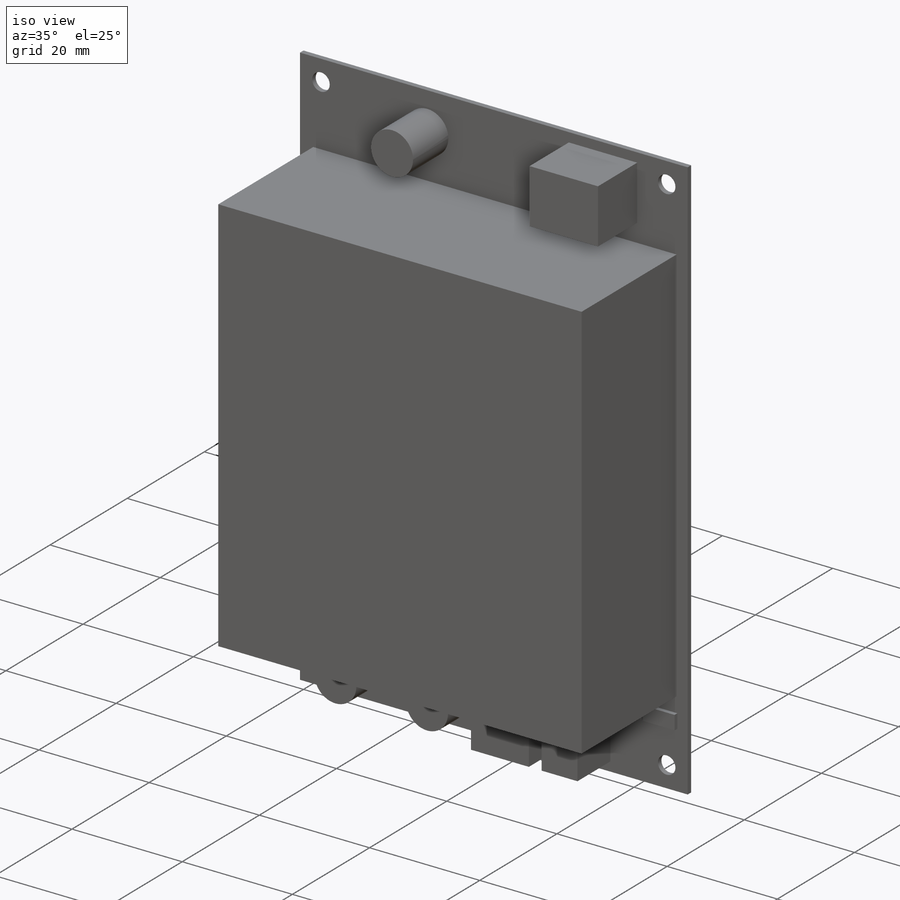
[diagram: iso view]
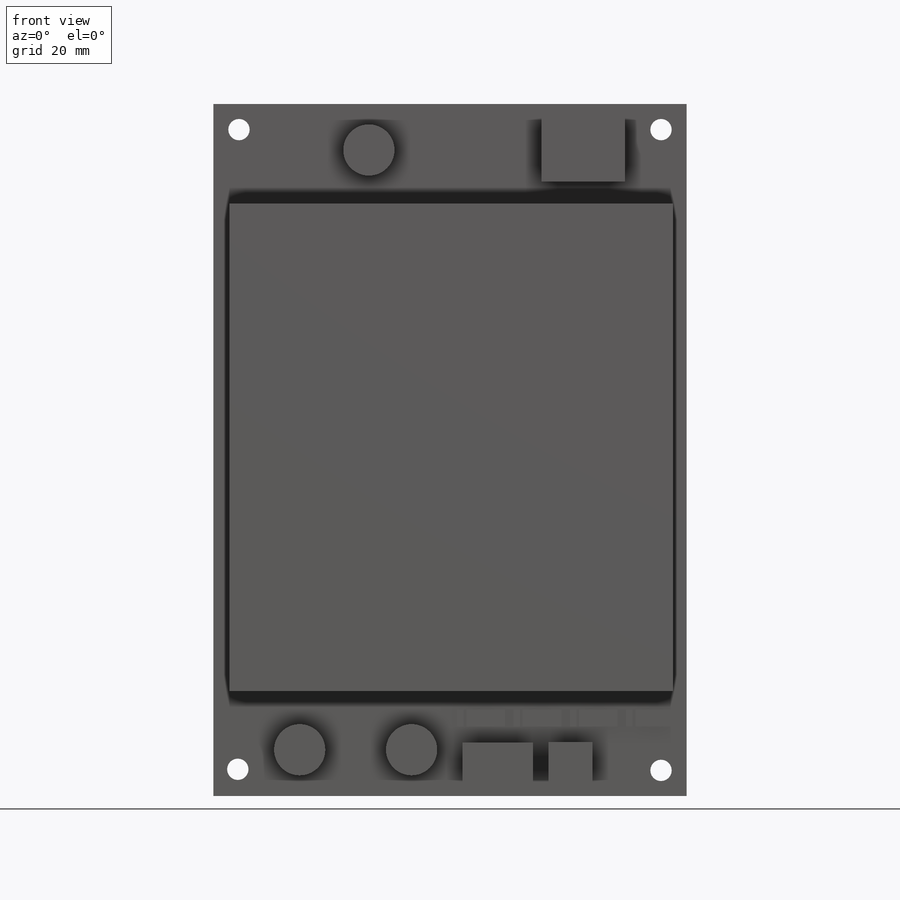
[diagram: front view]
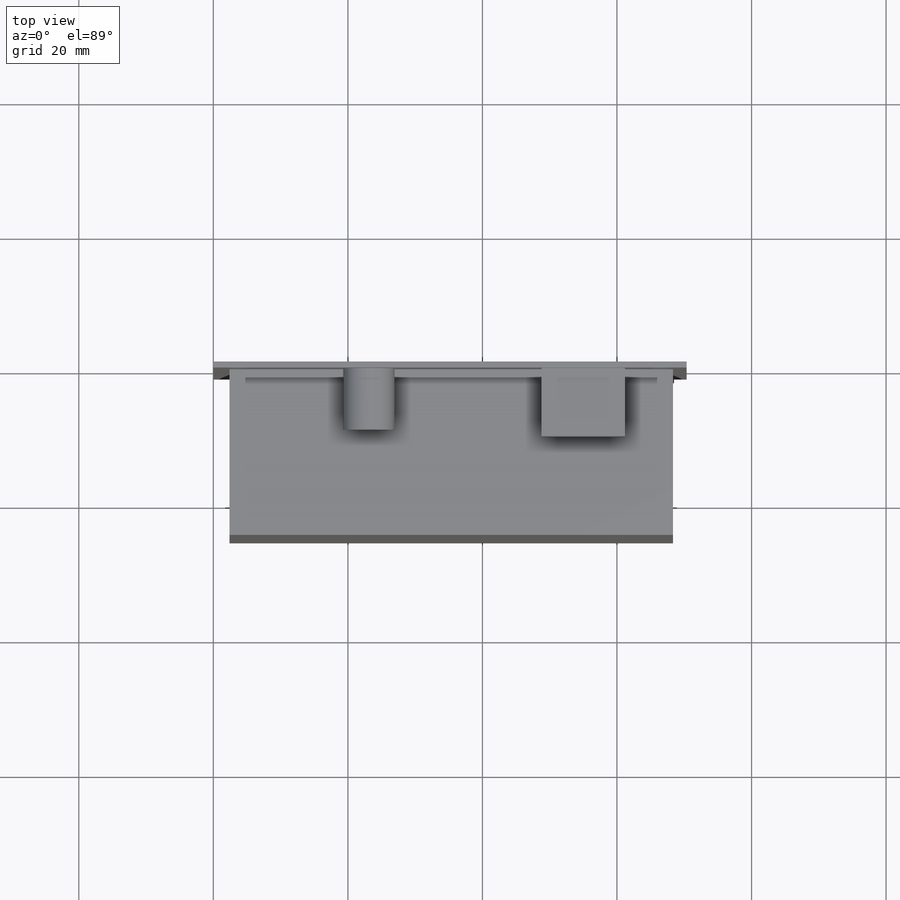
[diagram: top view]
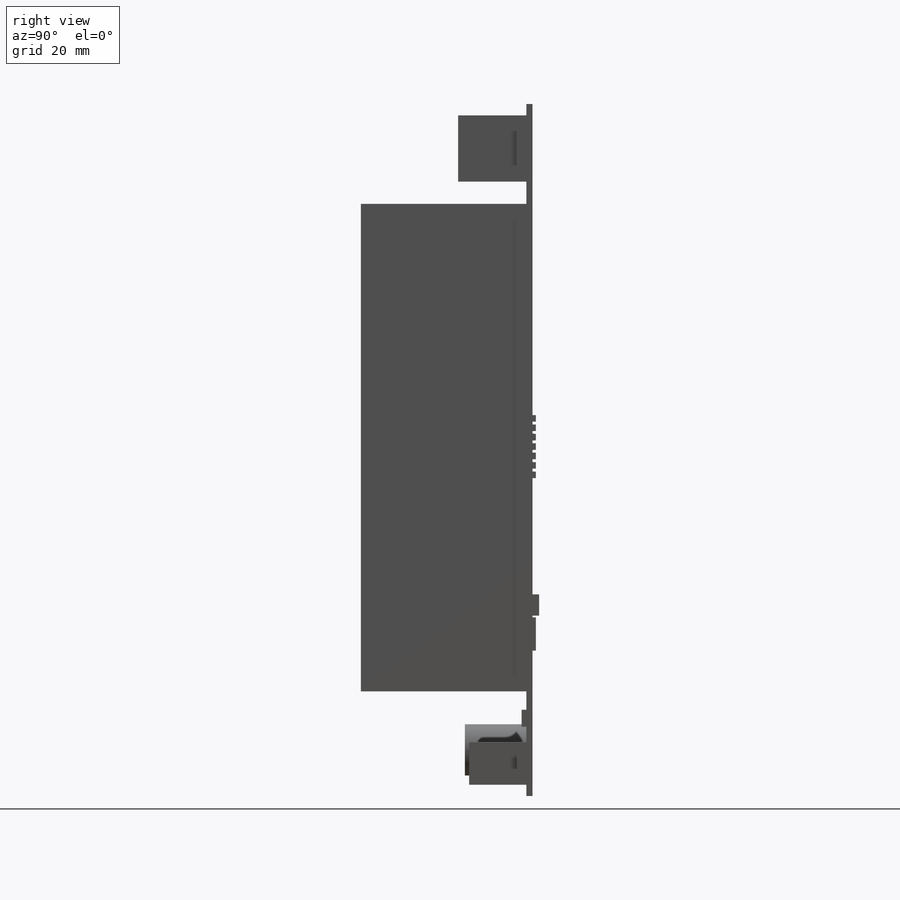
[diagram: right view]
SOLIDWORKS PART (.sldprt)
format: sldprt  version: not decoded by parser v0  size: 527,872 bytes
history: native  units: mm
features: sketch x37, extrude x35, fillet x12, material x1, plane x1, hole x1 (+16 scaffold rows collapsed)
feature tree (103):
  scaffold x16  (default folders/planes/origin — collapsed)
  material  "Material <not specified>"
  sketch  "Sketch1"
  extrude  "BOARD"  Depth=0.89916mm
  plane  "Plane1"
  sketch  "Sketch48"
  extrude  "0603-R-35"  Depth=0.508mm
  sketch  "Sketch49"
  extrude  "0603-R-36"  Depth=0.508mm
  sketch  "Sketch50"
  extrude  "0603-R-37"  Depth=0.508mm
  sketch  "Sketch59"
  extrude  "0603-RB-1"  Depth=0.254mm
  sketch  "Sketch60"
  extrude  "0603-R-44"  Depth=0.508mm
  sketch  "Sketch61"
  extrude  "0603-RA-1"  Depth=0.254mm
  sketch  "Sketch62"
  extrude  "0603-R-45"  Depth=0.508mm
  sketch  "Sketch63"
  extrude  "0603-R-46"  Depth=0.508mm
  sketch  "Sketch64"
  extrude  "0603-R-47"  Depth=0.508mm
  sketch  "Sketch65"
  extrude  "0603-R-48"  Depth=0.508mm
  sketch  "Sketch66"
  extrude  "0603-R-49"  Depth=0.508mm
  sketch  "Sketch67"
  extrude  "0603-R-50"  Depth=0.508mm
  sketch  "Sketch74"
  extrude  "0603-R-56"  Depth=0.508mm
  sketch  "Sketch75"
  extrude  "0603-RB-2"  Depth=0.254mm
  sketch  "Sketch78"
  extrude  "SMA-50-TH-1"  Depth=9.144mm
  sketch  "Sketch79"
  extrude  "SMA-50-TH-2"  Depth=9.144mm
  sketch  "Sketch83"
  extrude  "0805_POL-1"  Depth=0.7112mm
  sketch  "Sketch84"
  extrude  "0805_POL-2"  Depth=0.7112mm
  sketch  "Sketch85"
  extrude  "0603-R-58"  Depth=0.508mm
  sketch  "Sketch86"
  extrude  "0603-R-59"  Depth=0.508mm
  sketch  "Sketch110"
  extrude  "SMA-50-TH-3"  Depth=9.144mm
  sketch  "Sketch117"
  extrude  "HDR_SHERLOCK_4P_V-1"  Depth=8.509mm
  sketch  "Sketch118"
  extrude  "HDR_MFITJR_2R2P-V-1"  Depth=10.16mm
  sketch  "Sketch119"
  extrude  "HDR_SHERLOCK_2P_V-1"  Depth=8.509mm
  sketch  "Sketch121"
  extrude  "TSSOP8-1"  Depth=0.9906mm
  sketch  "Sketch122"
  extrude  "1206-R-5"  Depth=0.508mm
  sketch  "Sketch124"
  extrude  "0805_POL-3"  Depth=0.7112mm
  sketch  "Sketch125"
  extrude  "0805_POL-4"  Depth=0.7112mm
  sketch  "Sketch126"
  extrude  "0603-R-67"  Depth=0.508mm
  sketch  "Sketch127"
  extrude  "0603-R-68"  Depth=0.508mm
  sketch  "Sketch128"
  extrude  "0603-R-69"  Depth=0.508mm
  sketch  "Sketch129"
  extrude  "0603-R-70"  Depth=0.508mm
  sketch  "Sketch130"
  extrude  "CAP_AXL_18MM_8MM-1"  Depth=12.4968mm
  hole  "1/8 (0.125) Diameter Hole1"  Diameter=3.175mm Depth=25.4mm
  sketch  "3DSketch1"
  sketch  "Sketch138"  dims[hole-wizard template sketch: 47 standard entries collapsed; hole parameters kept: c15.Hole Depth=25.4mm c15.D3=~14.816244mm c15.Drill Angle=118.0deg]
  sketch  "Sketch139"
  extrude  "Extrude126"  Depth=24.609144mm
  fillet  "Fillet3"  Radius=3.81mm
  fillet  "Fillet4"  Radius=3.81mm
  fillet  "Fillet5"  Radius=3.81mm
  fillet  "Fillet6"  Radius=3.81mm
  fillet  "Fillet7"  Radius=3.81mm
  fillet  "Fillet8"  Radius=3.81mm
  fillet  "Fillet9"  Radius=3.81mm
  fillet  "Fillet10"  Radius=3.81mm
  fillet  "Fillet11"  Radius=3.81mm
  fillet  "Fillet12"  Radius=3.81mm
  fillet  "Fillet13"  Radius=3.81mm
  fillet  "Fillet14"  Radius=3.81mm
decode coverage: 49 of 85 modeling features carry decoded parameters
note: ~ marks probable driven/reference dimensions
note: suppression state not decoded; provenance and decode notes live in map.json
